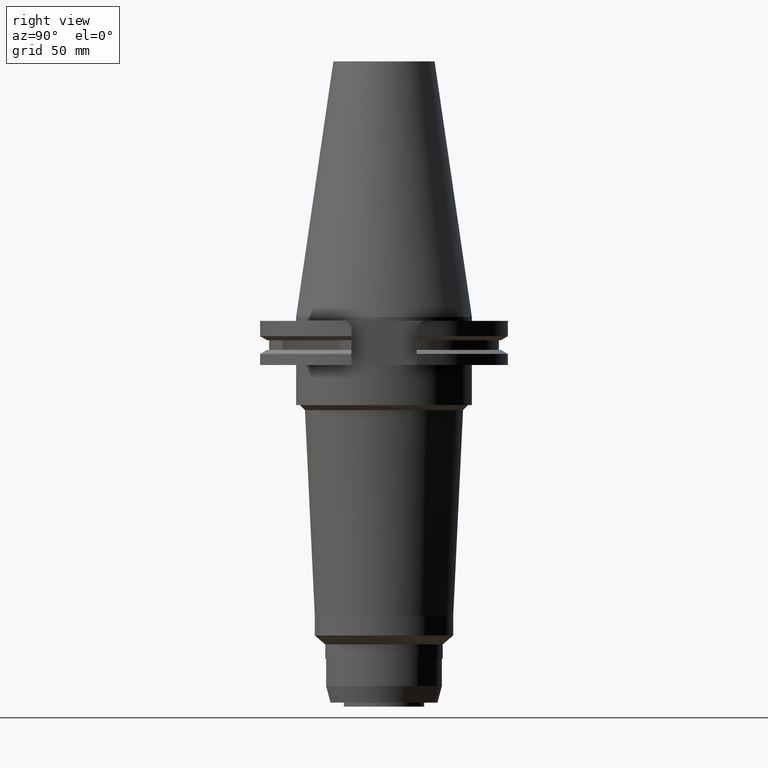
[diagram: clean part render]
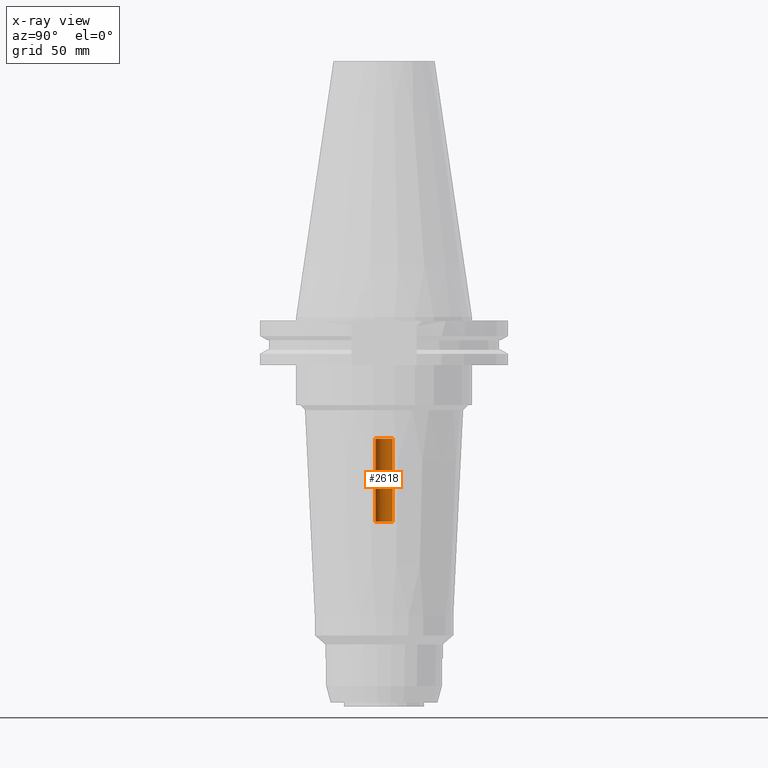
[diagram: x-ray — body ghosted, one internal face saturated and labeled with its STEP entity id]
A machine part, right view, then the same camera in x-ray: the body is ghosted and one INTERNAL B-rep face — a face not visible from any outside direction — is saturated and labeled: STEP entity #2618.
In plain terms, the highlighted cylindrical surface (edge-blend (fillet) strip) has radius 3.4 mm, axis along (0, 0, -1).
Its self-contained STEP definition (entity closure, byte-faithful):
#1212=CARTESIAN_POINT('',(0.E0,2.625887666732E-14,-8.14E1));
#1213=DIRECTION('',(0.E0,0.E0,-1.E0));
#1214=DIRECTION('',(0.E0,-1.E0,0.E0));
#1215=AXIS2_PLACEMENT_3D('',#1212,#1213,#1214);
#1228=DIRECTION('',(0.E0,0.E0,1.E0));
#1229=VECTOR('',#1228,3.3E1);
#1230=CARTESIAN_POINT('',(0.E0,-3.4E0,-8.14E1));
#1231=LINE('',#1230,#1229);
#1235=DIRECTION('',(0.E0,0.E0,1.E0));
#1236=VECTOR('',#1235,3.3E1);
#1237=CARTESIAN_POINT('',(0.E0,3.4E0,-8.14E1));
#1238=LINE('',#1237,#1236);
#1266=CARTESIAN_POINT('',(0.E0,2.625887666732E-14,-4.84E1));
#1267=DIRECTION('',(0.E0,0.E0,1.E0));
#1268=DIRECTION('',(0.E0,1.E0,0.E0));
#1269=AXIS2_PLACEMENT_3D('',#1266,#1267,#1268);
#1442=CARTESIAN_POINT('',(0.E0,-3.4E0,-4.84E1));
#1443=CARTESIAN_POINT('',(0.E0,3.4E0,-4.84E1));
#1444=VERTEX_POINT('',#1442);
#1445=VERTEX_POINT('',#1443);
#1446=CARTESIAN_POINT('',(0.E0,3.4E0,-8.14E1));
#1447=VERTEX_POINT('',#1446);
#1448=CARTESIAN_POINT('',(0.E0,-3.4E0,-8.14E1));
#1449=VERTEX_POINT('',#1448);
#2604=CARTESIAN_POINT('',(0.E0,2.625887666732E-14,1.1442E2));
#2605=DIRECTION('',(0.E0,0.E0,-1.E0));
#2606=DIRECTION('',(0.E0,-1.E0,0.E0));
#2607=AXIS2_PLACEMENT_3D('',#2604,#2605,#2606);
#2608=CYLINDRICAL_SURFACE('',#2607,3.4E0);
#2610=ORIENTED_EDGE('',*,*,#2609,.F.);
#2611=ORIENTED_EDGE('',*,*,#2597,.F.);
#2613=ORIENTED_EDGE('',*,*,#2612,.T.);
#2615=ORIENTED_EDGE('',*,*,#2614,.F.);
#2616=EDGE_LOOP('',(#2610,#2611,#2613,#2615));
#2617=FACE_OUTER_BOUND('',#2616,.F.);
#1216=CIRCLE('',#1215,3.4E0);
#1270=CIRCLE('',#1269,3.4E0);
#2597=EDGE_CURVE('',#1449,#1447,#1216,.T.);
#2609=EDGE_CURVE('',#1447,#1445,#1238,.T.);
#2612=EDGE_CURVE('',#1449,#1444,#1231,.T.);
#2614=EDGE_CURVE('',#1445,#1444,#1270,.T.);
#2618=ADVANCED_FACE('',(#2617),#2608,.F.);